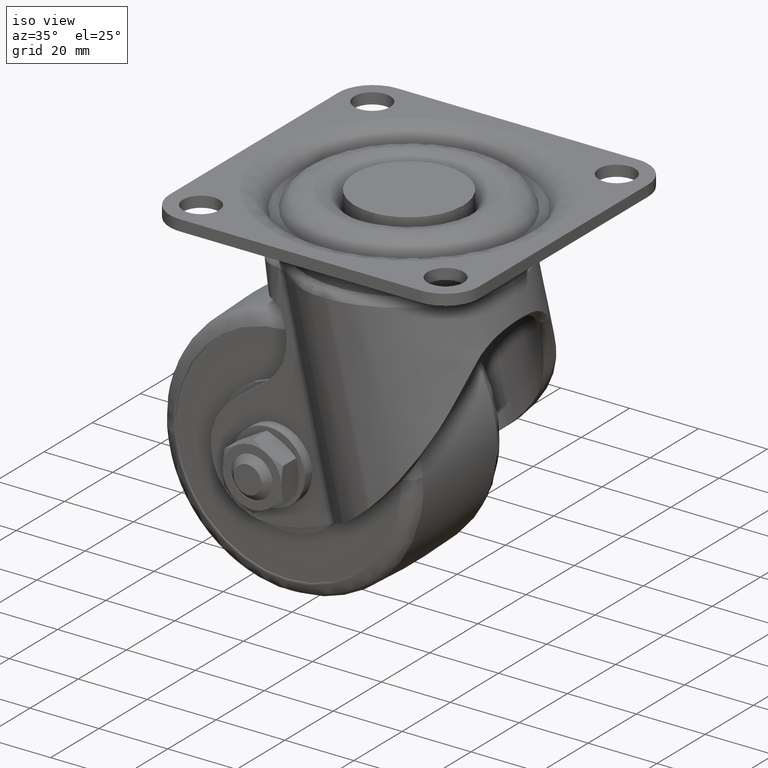
[diagram: clean part render]
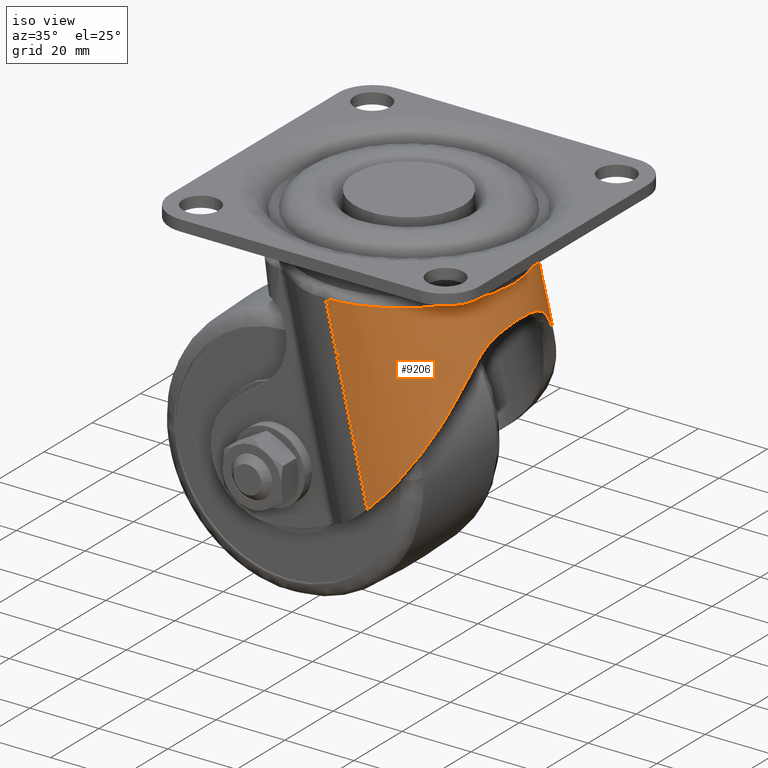
[diagram: same view with one face highlighted and labeled with its STEP entity id]
A machine part, iso view. The second image highlights one B-rep face of the part: STEP entity #9206.
In plain terms, the highlighted face is a freeform B-spline surface patch.
Its self-contained STEP definition (entity closure, byte-faithful):
#8080=CARTESIAN_POINT('',(-1.484518950519792,-31.350000000000001,-17.199999999999999));
#8081=VERTEX_POINT('',#8080);
#8353=CARTESIAN_POINT('',(-1.484518950519764,31.350000000000001,-17.199999999999999));
#8354=VERTEX_POINT('',#8353);
#8403=CARTESIAN_POINT('',(-1.484518950519764,31.350000000000001,-17.199999999999999));
#8404=CARTESIAN_POINT('',(0.524371822873423,31.350181476393999,-17.157557011711020));
#8405=CARTESIAN_POINT('',(3.570052366588984,31.068620152236271,-17.093209170921931));
#8406=CARTESIAN_POINT('',(7.547773310743684,30.128648163472509,-17.009169577686912));
#8407=CARTESIAN_POINT('',(10.496326828649350,29.126627637764980,-16.946873795314140));
#8408=CARTESIAN_POINT('',(13.335424365986670,27.846755131866210,-16.886890552260560));
#8409=CARTESIAN_POINT('',(16.038274856332610,26.299584361176169,-16.829785878762181));
#8410=CARTESIAN_POINT('',(18.578845608633770,24.498121313715561,-16.776109782423092));
#8411=CARTESIAN_POINT('',(20.932135215296771,22.457904611175071,-16.726390482330000));
#8412=CARTESIAN_POINT('',(23.074408024776691,20.196972156130979,-16.681129455215970));
#8413=CARTESIAN_POINT('',(24.983541446137071,17.735883399002589,-16.640794097754601));
#8414=CARTESIAN_POINT('',(26.639335729288661,15.097567226038191,-16.605811181660162));
#8415=CARTESIAN_POINT('',(28.023881786626038,12.307210045537291,-16.576559082503991));
#8416=CARTESIAN_POINT('',(29.396596959942698,8.663344007973727,-16.547556941224411));
#8417=CARTESIAN_POINT('',(30.354939424193489,4.410269327620782,-16.527309489981299));
#8418=CARTESIAN_POINT('',(30.648133299758420,-0.455150080528576,-16.521115014705750));
#8419=CARTESIAN_POINT('',(30.285270081045649,-4.534339214126113,-16.528781434177841));
#8420=CARTESIAN_POINT('',(29.508947824451749,-8.084825603066310,-16.545183240030688));
#8421=CARTESIAN_POINT('',(28.540343665996119,-11.045531927155251,-16.565647495977199));
#8422=CARTESIAN_POINT('',(27.279431640696959,-13.893927250574770,-16.592287507981730));
#8423=CARTESIAN_POINT('',(25.740235497058141,-16.601985752300731,-16.624806988271612));
#8424=CARTESIAN_POINT('',(23.939584793664270,-19.143575867102509,-16.662850369084250));
#8425=CARTESIAN_POINT('',(21.896679452250979,-21.494757258596682,-16.706012002675820));
#8426=CARTESIAN_POINT('',(19.632875791142631,-23.633910715965030,-16.753840681840739));
#8427=CARTESIAN_POINT('',(17.171231547833340,-25.541881412247591,-16.805849252527121));
#8428=CARTESIAN_POINT('',(14.536239732519251,-27.202050987056129,-16.861520236853689));
#8429=CARTESIAN_POINT('',(11.753496901212509,-28.600291424434719,-16.920312841690489));
#8430=CARTESIAN_POINT('',(8.365499150133346,-29.912542530958699,-16.991893014578292));
#8431=CARTESIAN_POINT('',(3.958873628007841,-31.037213753018239,-17.084994320984119));
#8432=CARTESIAN_POINT('',(0.459555092926354,-31.350151016706910,-17.158926431963469));
#8433=CARTESIAN_POINT('',(-1.484518950519792,-31.350000000000001,-17.199999999999999));
#8434=B_SPLINE_CURVE_WITH_KNOTS('',3,(#8403,#8404,#8405,#8406,#8407,#8408,#8409,#8410,#8411,#8412,#8413,#8414,#8415,#8416,#8417,#8418,#8419,#8420,#8421,#8422,#8423,#8424,#8425,#8426,#8427,#8428,#8429,#8430,#8431,#8432,#8433),.UNSPECIFIED.,.F.,.U.,(4,1,1,1,1,1,1,1,1,1,1,1,1,1,1,1,1,1,1,1,1,1,1,1,1,1,1,1,4),(0.000019649523651,6.028020172119938,9.139235016317159,12.250467247286100,15.361706518423960,18.472945319396430,21.584182823278638,24.695422758352638,27.806652877330489,30.917884550143441,34.029058831037290,37.140265120046493,40.251525655900622,45.696172548581373,50.168566701892942,54.835410939674567,57.946659345998917,61.057872192739808,64.169124444237426,67.280274760583808,70.391499301960465,73.502754672459645,76.613993065177738,79.725221157018481,82.836454088276952,85.947683238442977,89.058911716417072,93.725782976359113,99.559303227731164),.UNSPECIFIED.);
#8435=EDGE_CURVE('',#8354,#8081,#8434,.T.);
#8988=CARTESIAN_POINT('',(10.492263343951940,31.348806288061748,-70.152816215828764));
#8989=CARTESIAN_POINT('',(-2.057130999659445,31.348806288061748,-15.939418580917630));
#8990=CARTESIAN_POINT('',(42.118630918260621,31.632103448607484,-62.831899695916320));
#8991=CARTESIAN_POINT('',(29.569236574649242,31.632103448607484,-8.618502061005181));
#8992=CARTESIAN_POINT('',(41.290717604699758,-0.820647329452107,-63.023546246537776));
#8993=CARTESIAN_POINT('',(28.741323261088390,-0.820647329452106,-8.810148611626655));
#8994=CARTESIAN_POINT('',(40.462804291138916,-33.273398107511703,-63.215192797159254));
#8995=CARTESIAN_POINT('',(27.913409947527537,-33.273398107511703,-9.001795162248136));
#8996=CARTESIAN_POINT('',(8.894224232743376,-31.291525930525520,-70.522732580748794));
#8997=CARTESIAN_POINT('',(-3.655170110867996,-31.291525930525530,-16.309334945837669));
#9005=(BOUNDED_SURFACE()B_SPLINE_SURFACE(1,2,((#8988,#8990,#8992,#8994,#8996),(#8989,#8991,#8993,#8995,#8997)),.UNSPECIFIED.,.F.,.F.,.U.)B_SPLINE_SURFACE_WITH_KNOTS((2,2),(3,2,3),(0.0,55.646920683111063),(0.0,53.229141952684422,106.458283905368800),.UNSPECIFIED.)GEOMETRIC_REPRESENTATION_ITEM()RATIONAL_B_SPLINE_SURFACE(((1.0,0.694658370458997,1.0,0.694658370458997,1.0),(1.0,0.694658370458997,1.0,0.694658370458997,1.0)))REPRESENTATION_ITEM('')SURFACE());
#9006=CARTESIAN_POINT('',(30.501090233901149,13.509407468713761,-29.933902141937399));
#9007=VERTEX_POINT('',#9006);
#9008=CARTESIAN_POINT('',(30.167933935313851,14.834970166938099,-31.474647502570608));
#9009=VERTEX_POINT('',#9008);
#9010=CARTESIAN_POINT('',(30.501090233901149,13.509407468713761,-29.933902141937399));
#9011=CARTESIAN_POINT('',(30.383524974800810,13.979614313456970,-30.421682738029599));
#9012=CARTESIAN_POINT('',(30.272392974045619,14.419690993696040,-30.936776544838771));
#9013=CARTESIAN_POINT('',(30.167933935313851,14.834970166938099,-31.474647502570608));
#9014=QUASI_UNIFORM_CURVE('',3,(#9010,#9011,#9012,#9013),.UNSPECIFIED.,.F.,.U.);
#9015=EDGE_CURVE('',#9007,#9009,#9014,.T.);
#9016=ORIENTED_EDGE('',*,*,#9015,.T.);
#9017=CARTESIAN_POINT('',(25.820157492246000,24.150369751836951,-46.517935497095799));
#9018=VERTEX_POINT('',#9017);
#9019=CARTESIAN_POINT('',(30.167933935313851,14.834970166938099,-31.474647502570608));
#9020=CARTESIAN_POINT('',(30.109935720879569,15.065543439244040,-31.773286887646101));
#9021=CARTESIAN_POINT('',(30.049137989632861,15.294500020893720,-32.072506787586633));
#9022=CARTESIAN_POINT('',(29.922956261496200,15.747969803356280,-32.673221268123037));
#9023=CARTESIAN_POINT('',(29.857563633526951,15.972498480744830,-32.974702549387892));
#9024=CARTESIAN_POINT('',(29.722776302398671,16.416592574578171,-33.580450834324857));
#9025=CARTESIAN_POINT('',(29.653377981312410,16.636164706817748,-33.884712094814169));
#9026=CARTESIAN_POINT('',(29.510936808854950,17.070150565552421,-34.496242376435447));
#9027=CARTESIAN_POINT('',(29.437869553479239,17.284627551738009,-34.803599327372467));
#9028=CARTESIAN_POINT('',(29.213841566824410,17.919379145085468,-35.728867278242468));
#9029=CARTESIAN_POINT('',(29.058025008683501,18.331210771652671,-36.350384063865363));
#9030=CARTESIAN_POINT('',(28.733763504414661,19.133878161103759,-37.601868091195229));
#9031=CARTESIAN_POINT('',(28.565313283105869,19.524735844707269,-38.231820827189161));
#9032=CARTESIAN_POINT('',(28.214376040451839,20.288150321827288,-39.498159463282413));
#9033=CARTESIAN_POINT('',(28.031888983760378,20.660719576304029,-40.134538029820789));
#9034=CARTESIAN_POINT('',(27.649843858883550,21.390720674211650,-41.410935201796377));
#9035=CARTESIAN_POINT('',(27.450286684259630,21.748163163549780,-42.050947826260042));
#9036=CARTESIAN_POINT('',(27.029419476084179,22.451215589885450,-43.331229668439072));
#9037=CARTESIAN_POINT('',(26.808114824406100,22.796833680288358,-43.971495751663781));
#9038=CARTESIAN_POINT('',(26.337350602661150,23.479394263586880,-45.248458399500592));
#9039=CARTESIAN_POINT('',(26.087914594759390,23.816337175657090,-45.885161971596943));
#9040=CARTESIAN_POINT('',(25.820157492246199,24.150369751836649,-46.517935497095500));
#9041=B_SPLINE_CURVE_WITH_KNOTS('',3,(#9019,#9020,#9021,#9022,#9023,#9024,#9025,#9026,#9027,#9028,#9029,#9030,#9031,#9032,#9033,#9034,#9035,#9036,#9037,#9038,#9039,#9040),.UNSPECIFIED.,.F.,.U.,(4,2,2,2,2,2,2,2,2,2,4),(0.0,0.062500000000000,0.125000000000001,0.187500000000001,0.250000000000001,0.375000000000001,0.500000000000001,0.625000000000001,0.750000000000000,0.875000000000000,1.0),.UNSPECIFIED.);
#9042=EDGE_CURVE('',#9009,#9018,#9041,.T.);
#9043=ORIENTED_EDGE('',*,*,#9042,.T.);
#9044=CARTESIAN_POINT('',(10.460175249229319,31.350000000000001,-68.801092335430013));
#9045=VERTEX_POINT('',#9044);
#9046=CARTESIAN_POINT('',(10.460175249229319,31.350000000000001,-68.801092335430013));
#9047=CARTESIAN_POINT('',(11.328024935572801,31.350000000000001,-67.969497410978107));
#9048=CARTESIAN_POINT('',(12.164672140064610,31.299140117461679,-67.123106087123517));
#9049=CARTESIAN_POINT('',(13.779820034568830,31.109275499077729,-65.401329570666491));
#9050=CARTESIAN_POINT('',(14.558307751160029,30.970221092169439,-64.525944333870683));
#9051=CARTESIAN_POINT('',(16.060150780641042,30.613652116901090,-62.746587545312430));
#9052=CARTESIAN_POINT('',(16.783498257320929,30.396108402760820,-61.842615783445012));
#9053=CARTESIAN_POINT('',(18.177173298109139,29.889654001921180,-60.006306168276780));
#9054=CARTESIAN_POINT('',(18.847496035807609,29.600725824617282,-59.073968086940653));
#9055=CARTESIAN_POINT('',(19.814260497365922,29.117687303231470,-57.654216316979003));
#9056=CARTESIAN_POINT('',(20.130056845900029,28.948386581684240,-57.177423565149290));
#9057=CARTESIAN_POINT('',(20.594151453638130,28.682380860756972,-56.456912703296510));
#9058=CARTESIAN_POINT('',(20.746961961219959,28.591863737096642,-56.216297519225002));
#9059=CARTESIAN_POINT('',(21.048308542435720,28.407586089135648,-55.735090914110003));
#9060=CARTESIAN_POINT('',(21.196937561469039,28.313772495737592,-55.494355445667139));
#9061=CARTESIAN_POINT('',(21.930087082256961,27.836591920559108,-54.289994142111077));
#9062=CARTESIAN_POINT('',(22.484675409499118,27.428958315513889,-53.324306833795248));
#9063=CARTESIAN_POINT('',(23.534832046258110,26.567380805567399,-51.388106348682399));
#9064=CARTESIAN_POINT('',(24.030388448029370,26.113423320857979,-50.417594293980088));
#9065=CARTESIAN_POINT('',(24.966123033424850,25.163073319305219,-48.471538623035329));
#9066=CARTESIAN_POINT('',(25.406293316442230,24.666673952676280,-47.495994682614580));
#9067=CARTESIAN_POINT('',(25.820157492246000,24.150369751836841,-46.517935497095863));
#9068=B_SPLINE_CURVE_WITH_KNOTS('',3,(#9046,#9047,#9048,#9049,#9050,#9051,#9052,#9053,#9054,#9055,#9056,#9057,#9058,#9059,#9060,#9061,#9062,#9063,#9064,#9065,#9066,#9067),.UNSPECIFIED.,.F.,.U.,(4,2,2,2,2,2,2,2,2,2,4),(0.0,0.125000000000001,0.250000000000002,0.375000000000003,0.500000000000004,0.562500000000004,0.593750000000004,0.625000000000005,0.750000000000003,0.875000000000002,1.0),.UNSPECIFIED.);
#9069=EDGE_CURVE('',#9045,#9018,#9068,.T.);
#9070=ORIENTED_EDGE('',*,*,#9069,.F.);
#9071=CARTESIAN_POINT('',(-1.484518950519764,31.350000000000001,-17.199999999999999));
#9072=CARTESIAN_POINT('',(10.460175249229319,31.350000000000001,-68.801092335430013));
#9073=QUASI_UNIFORM_CURVE('',1,(#9071,#9072),.UNSPECIFIED.,.F.,.U.);
#9074=EDGE_CURVE('',#8354,#9045,#9073,.T.);
#9075=ORIENTED_EDGE('',*,*,#9074,.F.);
#9076=ORIENTED_EDGE('',*,*,#8435,.T.);
#9077=CARTESIAN_POINT('',(10.460175249229319,-31.350000000000001,-68.801092335430013));
#9078=VERTEX_POINT('',#9077);
#9079=CARTESIAN_POINT('',(10.460175249229319,-31.350000000000001,-68.801092335430013));
#9080=CARTESIAN_POINT('',(-1.484518950519792,-31.350000000000001,-17.199999999999999));
#9081=QUASI_UNIFORM_CURVE('',1,(#9079,#9080),.UNSPECIFIED.,.F.,.U.);
#9082=EDGE_CURVE('',#9078,#8081,#9081,.T.);
#9083=ORIENTED_EDGE('',*,*,#9082,.F.);
#9084=CARTESIAN_POINT('',(25.820157492246601,-24.150369751836251,-46.517935497094498));
#9085=VERTEX_POINT('',#9084);
#9086=CARTESIAN_POINT('',(25.820157492246601,-24.150369751836251,-46.517935497094498));
#9087=CARTESIAN_POINT('',(25.408028862851619,-24.664508822292142,-47.491893174905542));
#9088=CARTESIAN_POINT('',(24.968164384232299,-25.160993725112370,-48.467285466605759));
#9089=CARTESIAN_POINT('',(24.380890941307090,-25.757447851612280,-49.688653026421932));
#9090=CARTESIAN_POINT('',(24.261561215565170,-25.875527808730531,-49.933033898491047));
#9091=CARTESIAN_POINT('',(24.019069957499180,-26.109200171158928,-50.422022820575137));
#9092=CARTESIAN_POINT('',(23.895859307286241,-26.224837359096409,-50.666726824285739));
#9093=CARTESIAN_POINT('',(23.520665477970951,-26.567620735571442,-51.400581662397222));
#9094=CARTESIAN_POINT('',(23.263995392238211,-26.789852075817429,-51.887777651422873));
#9095=CARTESIAN_POINT('',(22.474049510161478,-27.437123126638511,-53.343235329498697));
#9096=CARTESIAN_POINT('',(21.920861504526620,-27.842782533645419,-54.305366832830551));
#9097=CARTESIAN_POINT('',(20.759186129566380,-28.598501955375038,-56.213240668568353));
#9098=CARTESIAN_POINT('',(20.150705354969009,-28.948573609290118,-57.158983164937659));
#9099=CARTESIAN_POINT('',(18.875442932436840,-29.587740344572079,-59.034032868271467));
#9100=CARTESIAN_POINT('',(18.208671512165779,-29.876855339294629,-59.963339663777447));
#9101=CARTESIAN_POINT('',(17.161733787148219,-30.259292538266681,-61.344937162251959));
#9102=CARTESIAN_POINT('',(16.804948475026158,-30.378215265933800,-61.803409231899607));
#9103=CARTESIAN_POINT('',(16.257579594815319,-30.542890102872619,-62.488023433422043));
#9104=CARTESIAN_POINT('',(16.073090724028951,-30.595495408695619,-62.715712530675347));
#9105=CARTESIAN_POINT('',(15.699957630320091,-30.695968800349540,-63.170059145416282));
#9106=CARTESIAN_POINT('',(15.511578869494430,-30.743761317309819,-63.396389270062819));
#9107=CARTESIAN_POINT('',(14.562409088737740,-30.969759109542171,-64.521609267565054));
#9108=CARTESIAN_POINT('',(13.778028554690650,-31.109652565957759,-65.403398375078453));
#9109=CARTESIAN_POINT('',(12.158007555739740,-31.299756210537979,-67.130050765816534));
#9110=CARTESIAN_POINT('',(11.322371774611501,-31.349999999999991,-67.974914408917385));
#9111=CARTESIAN_POINT('',(10.460175249229319,-31.350000000000001,-68.801092335430013));
#9112=B_SPLINE_CURVE_WITH_KNOTS('',3,(#9086,#9087,#9088,#9089,#9090,#9091,#9092,#9093,#9094,#9095,#9096,#9097,#9098,#9099,#9100,#9101,#9102,#9103,#9104,#9105,#9106,#9107,#9108,#9109,#9110,#9111),.UNSPECIFIED.,.F.,.U.,(4,2,2,2,2,2,2,2,2,2,2,2,4),(0.0,0.124999999999999,0.156249999999998,0.187499999999998,0.249999999999999,0.374999999999999,0.499999999999999,0.625000000000000,0.687500000000000,0.718750000000000,0.750000000000000,0.875000000000000,1.0),.UNSPECIFIED.);
#9113=EDGE_CURVE('',#9085,#9078,#9112,.T.);
#9114=ORIENTED_EDGE('',*,*,#9113,.F.);
#9115=CARTESIAN_POINT('',(30.167933977785751,-14.834970115155000,-31.474647562725099));
#9116=VERTEX_POINT('',#9115);
#9117=CARTESIAN_POINT('',(25.820157492246601,-24.150369751836251,-46.517935497094498));
#9118=CARTESIAN_POINT('',(26.087712350857199,-23.816589479148021,-45.885639921895063));
#9119=CARTESIAN_POINT('',(26.337378873548719,-23.479388839233359,-45.248439191217543));
#9120=CARTESIAN_POINT('',(26.691166144333469,-22.966379616914640,-44.288693866305671));
#9121=CARTESIAN_POINT('',(26.805624856894330,-22.794172220381800,-43.968116075576887));
#9122=CARTESIAN_POINT('',(27.028432867896601,-22.446965801641561,-43.326152647935359));
#9123=CARTESIAN_POINT('',(27.136807470314078,-22.271920665725851,-43.004684822808663));
#9124=CARTESIAN_POINT('',(27.453450775125820,-21.742683920383321,-42.041057138449773));
#9125=CARTESIAN_POINT('',(27.653420226428992,-21.384203349017159,-41.399341707303194));
#9126=CARTESIAN_POINT('',(28.035927996385361,-20.652679287693839,-40.120681710870969));
#9127=CARTESIAN_POINT('',(28.218464107978249,-20.279625233919528,-39.483743361629600));
#9128=CARTESIAN_POINT('',(28.569206702182608,-19.515889867506960,-38.217428431170937));
#9129=CARTESIAN_POINT('',(28.737412050934900,-19.125196464017851,-37.588059332077179));
#9130=CARTESIAN_POINT('',(29.060931782954480,-18.323658462004740,-36.338887045415312));
#9131=CARTESIAN_POINT('',(29.216250207763839,-17.912792936774849,-35.719098392789363));
#9132=CARTESIAN_POINT('',(29.513753204903679,-17.069380716269759,-34.490007543831553));
#9133=CARTESIAN_POINT('',(29.655965013194741,-16.636773065045809,-33.880751767489322));
#9134=CARTESIAN_POINT('',(29.857709265856091,-15.971992448228839,-32.974025965667032));
#9135=CARTESIAN_POINT('',(29.923011317252481,-15.747773085070611,-32.672960239739773));
#9136=CARTESIAN_POINT('',(30.049103492490989,-15.294622855789090,-32.072669942214972));
#9137=CARTESIAN_POINT('',(30.109902496646900,-15.065675638561091,-31.773458235422620));
#9138=CARTESIAN_POINT('',(30.167934022560900,-14.834970054231000,-31.474647611026199));
#9139=B_SPLINE_CURVE_WITH_KNOTS('',3,(#9117,#9118,#9119,#9120,#9121,#9122,#9123,#9124,#9125,#9126,#9127,#9128,#9129,#9130,#9131,#9132,#9133,#9134,#9135,#9136,#9137,#9138),.UNSPECIFIED.,.F.,.U.,(4,2,2,2,2,2,2,2,2,2,4),(0.0,0.124999999999999,0.187499999999999,0.249999999999998,0.374999999999999,0.499999999999999,0.625000000000000,0.750000000000000,0.875000000000000,0.937500000000000,1.0),.UNSPECIFIED.);
#9140=EDGE_CURVE('',#9085,#9116,#9139,.T.);
#9141=ORIENTED_EDGE('',*,*,#9140,.T.);
#9142=CARTESIAN_POINT('',(30.501090233900999,-13.509407468714420,-29.933902141938049));
#9143=VERTEX_POINT('',#9142);
#9144=CARTESIAN_POINT('',(30.167933977785751,-14.834970115155000,-31.474647562725099));
#9145=CARTESIAN_POINT('',(30.272393018183550,-14.419690938396171,-30.936776608262839));
#9146=CARTESIAN_POINT('',(30.383524974252531,-13.979614315649981,-30.421682740304529));
#9147=CARTESIAN_POINT('',(30.501090233901049,-13.509407468714279,-29.933902141937850));
#9148=QUASI_UNIFORM_CURVE('',3,(#9144,#9145,#9146,#9147),.UNSPECIFIED.,.F.,.U.);
#9149=EDGE_CURVE('',#9116,#9143,#9148,.T.);
#9150=ORIENTED_EDGE('',*,*,#9149,.T.);
#9151=CARTESIAN_POINT('',(30.501090233901149,13.509407468713761,-29.933902141937399));
#9152=CARTESIAN_POINT('',(30.606911601110301,13.086170778192640,-29.494847186659221));
#9153=CARTESIAN_POINT('',(30.722135253638150,12.634871456476191,-29.088782821279452));
#9154=CARTESIAN_POINT('',(30.901006097541959,11.918164382779629,-28.524483898015191));
#9155=CARTESIAN_POINT('',(30.961653489611109,11.672617415151951,-28.343875132094411));
#9156=CARTESIAN_POINT('',(31.053277331748770,11.294481503151861,-28.083798399377219));
#9157=CARTESIAN_POINT('',(31.083928093217320,11.166799434192921,-27.998913336651778));
#9158=CARTESIAN_POINT('',(31.145308633226691,10.908177210715539,-27.832703489665860));
#9159=CARTESIAN_POINT('',(31.176034713884341,10.777245246742639,-27.751395943686148));
#9160=CARTESIAN_POINT('',(31.328519296534239,10.118873819171011,-27.356167567129830));
#9161=CARTESIAN_POINT('',(31.447589241591970,9.576908903914658,-27.073756573164179));
#9162=CARTESIAN_POINT('',(31.673315397644270,8.465049478712876,-26.567561657080098));
#9163=CARTESIAN_POINT('',(31.779997701687240,7.895144201269787,-26.343814091769350));
#9164=CARTESIAN_POINT('',(31.926876427573930,7.020409403842760,-26.047996426499449));
#9165=CARTESIAN_POINT('',(31.973653785133791,6.725510335607747,-25.956046654057690));
#9166=CARTESIAN_POINT('',(32.040123066995370,6.278247816728586,-25.827762992491522));
#9167=CARTESIAN_POINT('',(32.061635063779633,6.128522142497874,-25.786665699882981));
#9168=CARTESIAN_POINT('',(32.103185394742503,5.828801346991251,-25.707969065465260));
#9169=CARTESIAN_POINT('',(32.123245619423912,5.678660339300373,-25.670327433590309));
#9170=CARTESIAN_POINT('',(32.219889636375022,4.926580714881595,-25.490393642513940));
#9171=CARTESIAN_POINT('',(32.285482208062533,4.320532459313447,-25.372807720352601));
#9172=CARTESIAN_POINT('',(32.391474572721748,3.100158003930183,-25.185707205312720));
#9173=CARTESIAN_POINT('',(32.431881621514599,2.485830479265160,-25.116206567752339));
#9174=CARTESIAN_POINT('',(32.486142236715118,1.249053321018906,-25.023353748060291));
#9175=CARTESIAN_POINT('',(32.499999862953040,0.626604113670391,-25.000000623256138));
#9176=CARTESIAN_POINT('',(32.500000267124278,-0.626576688869475,-24.999999938706878));
#9177=CARTESIAN_POINT('',(32.486143345466317,-1.248780691128202,-25.023352235971601));
#9178=CARTESIAN_POINT('',(32.431946206666673,-2.484605430323664,-25.116095662412491));
#9179=CARTESIAN_POINT('',(32.391601862326823,-3.098225720882865,-25.185488626015459));
#9180=CARTESIAN_POINT('',(32.285852418669407,-4.316734436866779,-25.372148127870780));
#9181=CARTESIAN_POINT('',(32.220440098928783,-4.921624112374793,-25.489401861135040));
#9182=CARTESIAN_POINT('',(32.104863544091451,-5.822040025044966,-25.704535274780390));
#9183=CARTESIAN_POINT('',(32.063431809209192,-6.121022759613751,-25.782810251501040));
#9184=CARTESIAN_POINT('',(31.997135587631139,-6.567688323066473,-25.910711981902029));
#9185=CARTESIAN_POINT('',(31.974315250827310,-6.716462307011430,-25.955156507915859));
#9186=CARTESIAN_POINT('',(31.927543571414159,-7.012080234038191,-26.047256468126982));
#9187=CARTESIAN_POINT('',(31.903583716712529,-7.158995527408153,-26.094927106205621));
#9188=CARTESIAN_POINT('',(31.781103139645861,-7.889078759790979,-26.341515715067128));
#9189=CARTESIAN_POINT('',(31.674502345622638,-8.458807490134824,-26.565040087454140));
#9190=CARTESIAN_POINT('',(31.449413357108469,-9.568314043422747,-27.069527642611732));
#9191=CARTESIAN_POINT('',(31.330901338352419,-10.108100809312310,-27.350462043555609));
#9192=CARTESIAN_POINT('',(31.149161953916050,-10.893506334992180,-27.820823003712601));
#9193=CARTESIAN_POINT('',(31.087932315764540,-11.151252735240501,-27.985795181382230));
#9194=CARTESIAN_POINT('',(30.995880429361080,-11.531454897285769,-28.246554719735769));
#9195=CARTESIAN_POINT('',(30.965113528568139,-11.657318103312580,-28.335845883838530));
#9196=CARTESIAN_POINT('',(30.904022044724499,-11.905363530151879,-28.517963922291731));
#9197=CARTESIAN_POINT('',(30.873674422609561,-12.027645044479140,-28.610848501703771));
#9198=CARTESIAN_POINT('',(30.723309013160339,-12.630294605904060,-29.084548354303148));
#9199=CARTESIAN_POINT('',(30.607335614822880,-13.084474918791260,-29.493087945340200));
#9200=CARTESIAN_POINT('',(30.501090233900939,-13.509407468714169,-29.933902141938301));
#9201=B_SPLINE_CURVE_WITH_KNOTS('',3,(#9151,#9152,#9153,#9154,#9155,#9156,#9157,#9158,#9159,#9160,#9161,#9162,#9163,#9164,#9165,#9166,#9167,#9168,#9169,#9170,#9171,#9172,#9173,#9174,#9175,#9176,#9177,#9178,#9179,#9180,#9181,#9182,#9183,#9184,#9185,#9186,#9187,#9188,#9189,#9190,#9191,#9192,#9193,#9194,#9195,#9196,#9197,#9198,#9199,#9200),.UNSPECIFIED.,.F.,.U.,(4,2,2,2,2,2,2,2,2,2,2,2,2,2,2,2,2,2,2,2,2,2,2,2,4),(0.0,0.062499999999999,0.093749999999999,0.109374999999999,0.124999999999999,0.187499999999999,0.249999999999999,0.281250000000000,0.296875000000000,0.312500000000000,0.375000000000000,0.437500000000000,0.500000000000000,0.562500000000000,0.625000000000001,0.687500000000001,0.718750000000001,0.734375000000001,0.750000000000001,0.812500000000001,0.875000000000000,0.906250000000000,0.921875000000000,0.937500000000000,1.0),.UNSPECIFIED.);
#9202=EDGE_CURVE('',#9007,#9143,#9201,.T.);
#9203=ORIENTED_EDGE('',*,*,#9202,.F.);
#9204=EDGE_LOOP('',(#9016,#9043,#9070,#9075,#9076,#9083,#9114,#9141,#9150,#9203));
#9205=FACE_OUTER_BOUND('',#9204,.T.);
#9206=ADVANCED_FACE('',(#9205),#9005,.T.);